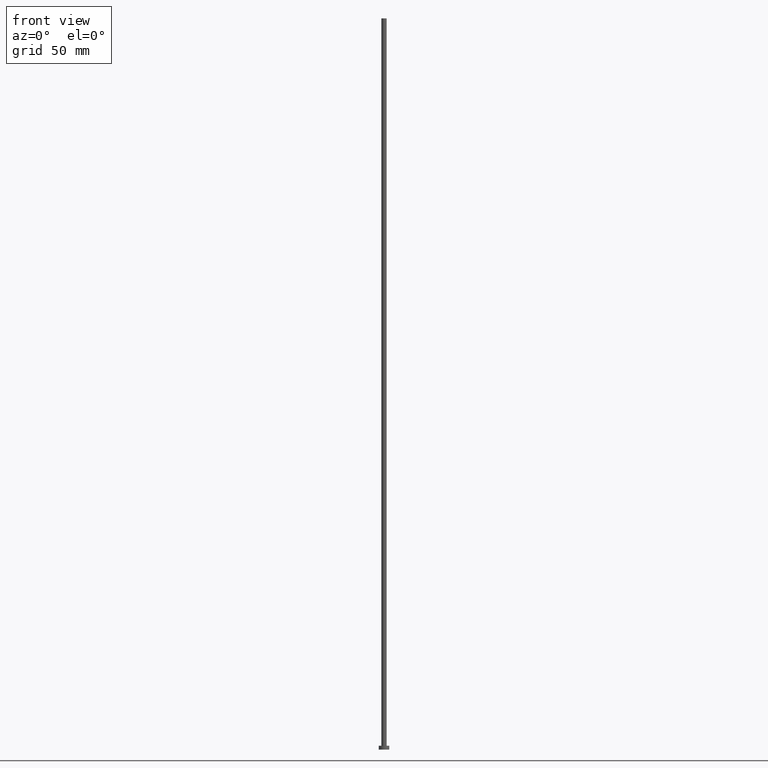
[diagram: clean part render]
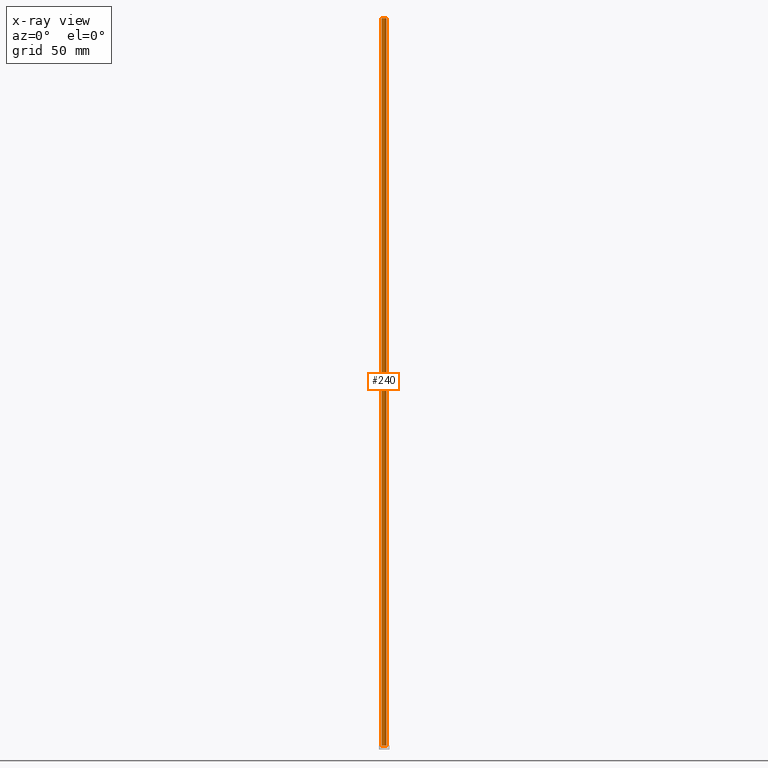
[diagram: x-ray — body ghosted, one internal face saturated and labeled with its STEP entity id]
A machine part, front view, then the same camera in x-ray: the body is ghosted and one INTERNAL B-rep face — a face not visible from any outside direction — is saturated and labeled: STEP entity #240.
In plain terms, the highlighted cylindrical surface (edge-blend (fillet) strip) has radius 2 mm, axis along (-0, -0, -1).
Its self-contained STEP definition (entity closure, byte-faithful):
#2 = DIRECTION ( 'NONE',  ( 1.000000000000000000, 0.000000000000000000, 0.000000000000000000 ) ) ;
#13 = ORIENTED_EDGE ( 'NONE', *, *, #28, .T. ) ;
#23 = DIRECTION ( 'NONE',  ( -0.000000000000000000, -0.000000000000000000, -1.000000000000000000 ) ) ;
#28 = EDGE_CURVE ( 'NONE', #118, #30, #111, .T. ) ;
#29 = AXIS2_PLACEMENT_3D ( 'NONE', #197, #102, #2 ) ;
#30 = VERTEX_POINT ( 'NONE', #56 ) ;
#34 = AXIS2_PLACEMENT_3D ( 'NONE', #237, #23, #148 ) ;
#40 = LINE ( 'NONE', #184, #49 ) ;
#49 = VECTOR ( 'NONE', #66, 1000.000000000000000 ) ;
#55 = VECTOR ( 'NONE', #214, 1000.000000000000000 ) ;
#56 = CARTESIAN_POINT ( 'NONE',  ( -2.000000000000000000, 0.000000000000000000, 3.000000000000000000 ) ) ;
#58 = DIRECTION ( 'NONE',  ( 1.000000000000000000, 0.000000000000000000, 0.000000000000000000 ) ) ;
#66 = DIRECTION ( 'NONE',  ( -0.000000000000000000, -0.000000000000000000, -1.000000000000000000 ) ) ;
#69 = ORIENTED_EDGE ( 'NONE', *, *, #100, .F. ) ;
#100 = EDGE_CURVE ( 'NONE', #113, #244, #149, .T. ) ;
#102 = DIRECTION ( 'NONE',  ( 0.000000000000000000, 0.000000000000000000, 1.000000000000000000 ) ) ;
#111 = CIRCLE ( 'NONE', #160, 2.000000000000000000 ) ;
#113 = VERTEX_POINT ( 'NONE', #142 ) ;
#118 = VERTEX_POINT ( 'NONE', #233 ) ;
#135 = EDGE_CURVE ( 'NONE', #113, #118, #177, .T. ) ;
#137 = ORIENTED_EDGE ( 'NONE', *, *, #241, .F. ) ;
#142 = CARTESIAN_POINT ( 'NONE',  ( 2.000000000000000000, 2.449293598294706414E-16, 560.0000000000000000 ) ) ;
#148 = DIRECTION ( 'NONE',  ( -1.000000000000000000, 0.000000000000000000, 0.000000000000000000 ) ) ;
#149 = CIRCLE ( 'NONE', #29, 2.000000000000000000 ) ;
#153 = ORIENTED_EDGE ( 'NONE', *, *, #135, .T. ) ;
#159 = CARTESIAN_POINT ( 'NONE',  ( 0.000000000000000000, 0.000000000000000000, 3.000000000000000000 ) ) ;
#160 = AXIS2_PLACEMENT_3D ( 'NONE', #159, #249, #58 ) ;
#165 = FACE_OUTER_BOUND ( 'NONE', #224, .T. ) ;
#177 = LINE ( 'NONE', #251, #55 ) ;
#184 = CARTESIAN_POINT ( 'NONE',  ( -2.000000000000000000, 0.000000000000000000, 560.0000000000000000 ) ) ;
#197 = CARTESIAN_POINT ( 'NONE',  ( 0.000000000000000000, 0.000000000000000000, 560.0000000000000000 ) ) ;
#199 = CARTESIAN_POINT ( 'NONE',  ( -2.000000000000000000, 0.000000000000000000, 560.0000000000000000 ) ) ;
#214 = DIRECTION ( 'NONE',  ( -0.000000000000000000, -0.000000000000000000, -1.000000000000000000 ) ) ;
#216 = CYLINDRICAL_SURFACE ( 'NONE', #34, 2.000000000000000000 ) ;
#224 = EDGE_LOOP ( 'NONE', ( #69, #153, #13, #137 ) ) ;
#233 = CARTESIAN_POINT ( 'NONE',  ( 2.000000000000000000, 2.449293598294706414E-16, 3.000000000000000000 ) ) ;
#237 = CARTESIAN_POINT ( 'NONE',  ( 0.000000000000000000, 0.000000000000000000, 560.0000000000000000 ) ) ;
#240 = ADVANCED_FACE ( 'NONE', ( #165 ), #216, .T. ) ;
#241 = EDGE_CURVE ( 'NONE', #244, #30, #40, .T. ) ;
#244 = VERTEX_POINT ( 'NONE', #199 ) ;
#249 = DIRECTION ( 'NONE',  ( 0.000000000000000000, 0.000000000000000000, 1.000000000000000000 ) ) ;
#251 = CARTESIAN_POINT ( 'NONE',  ( 2.000000000000000000, 2.449293598294706414E-16, 560.0000000000000000 ) ) ;